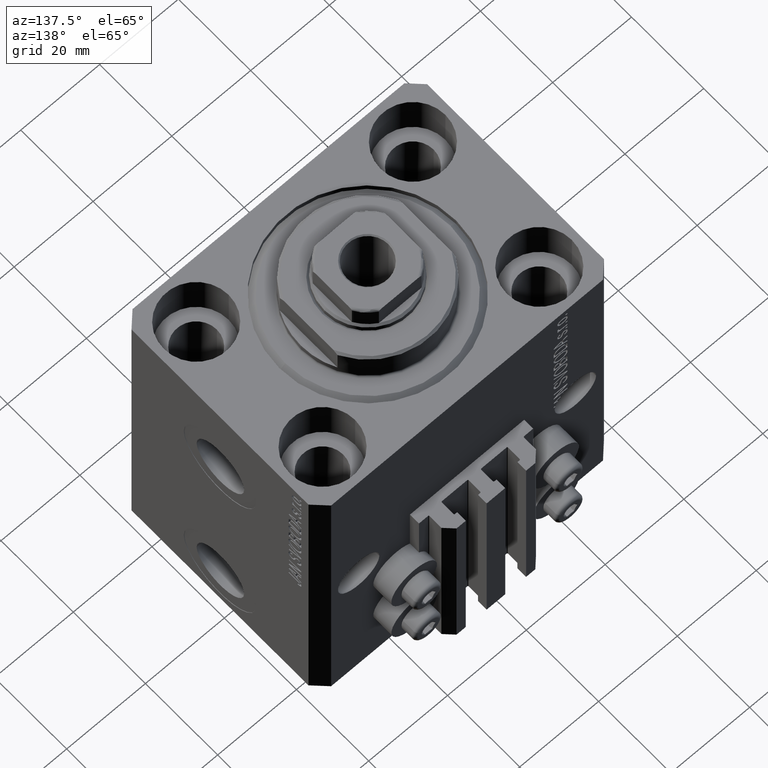
[diagram: clean part render]
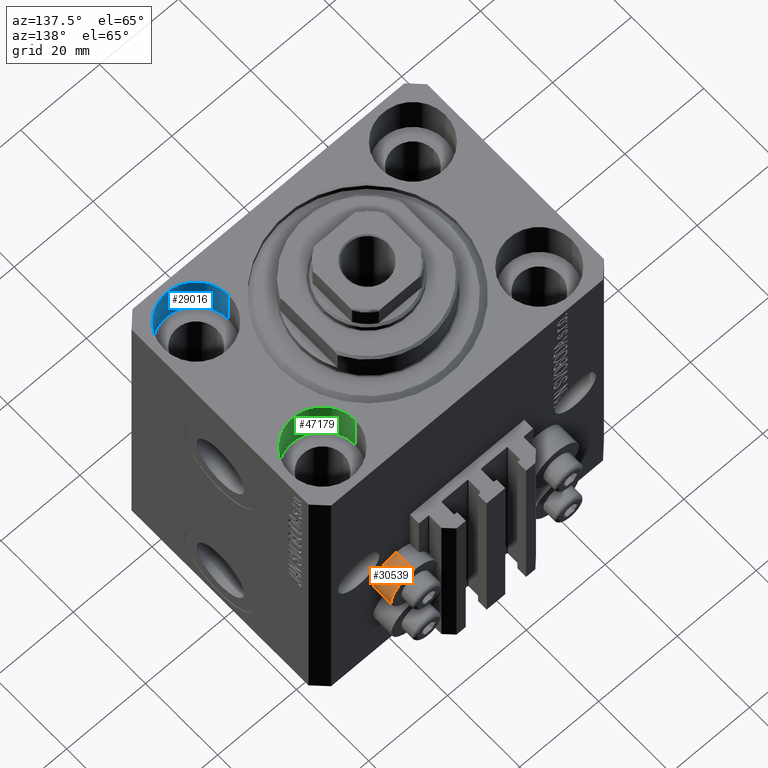
[diagram: same view with three faces highlighted in distinct colors, each labeled with its STEP entity id]
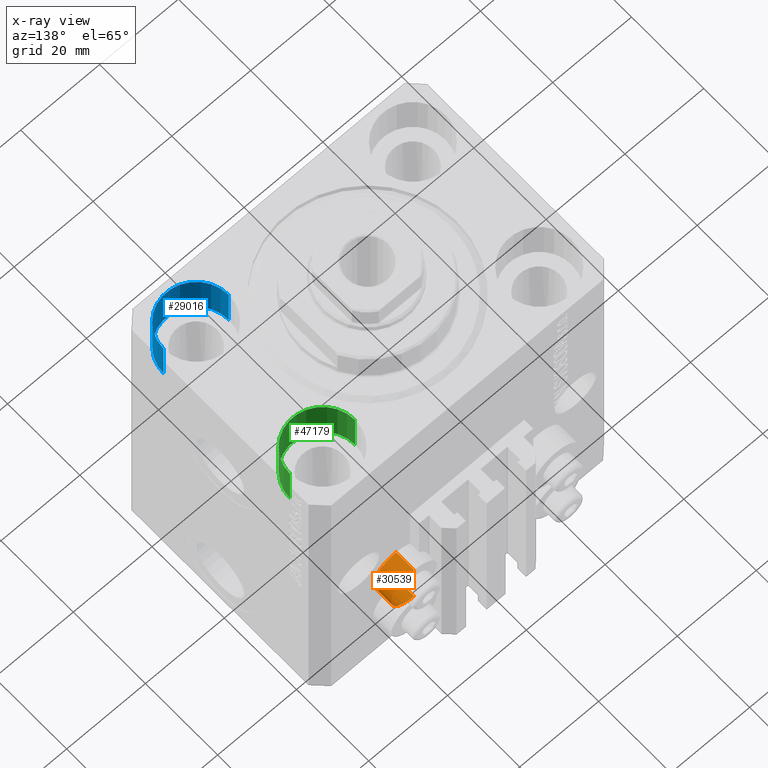
[diagram: x-ray of the same camera — body ghosted, the three highlighted faces saturated]
A machine part, auxiliary view with three faces highlighted in distinct colors.
The next image is the same camera in x-ray (body ghosted, the three faces saturated) — at least one of them is partly hidden behind the body in this view.
Their STEP definitions:

[orange] entity #30539 — the highlighted cylindrical surface (edge-blend (fillet) strip) has radius 5.8 mm, axis along (0, 1, 0).
#2327 = DIRECTION ( 'NONE',  ( 0.000000000000000000, 0.000000000000000000, 1.000000000000000000 ) ) ;
#3249 = EDGE_CURVE ( 'NONE', #19254, #18266, #23833, .T. ) ;
#8382 = CARTESIAN_POINT ( 'NONE',  ( 18.00000000000000355, 32.49999999996100541, -44.60000000000000142 ) ) ;
#8916 = AXIS2_PLACEMENT_3D ( 'NONE', #45143, #9453, #26960 ) ;
#9119 = CARTESIAN_POINT ( 'NONE',  ( 18.00000000000000355, 32.49999999996100541, -50.39999999999999858 ) ) ;
#9334 = LINE ( 'NONE', #16991, #40969 ) ;
#9453 = DIRECTION ( 'NONE',  ( -0.000000000000000000, -1.000000000000000000, -0.000000000000000000 ) ) ;
#9511 = EDGE_CURVE ( 'NONE', #16970, #23801, #11216, .T. ) ;
#9801 = DIRECTION ( 'NONE',  ( 0.000000000000000000, 1.000000000000000000, 0.000000000000000000 ) ) ;
#11216 = CIRCLE ( 'NONE', #8916, 5.799999999999999822 ) ;
#13117 = CARTESIAN_POINT ( 'NONE',  ( 18.00000000000000355, 32.49999999996100541, -50.39999999999999858 ) ) ;
#13618 = LINE ( 'NONE', #21038, #42166 ) ;
#14645 = EDGE_LOOP ( 'NONE', ( #21420, #29798, #29942, #37125 ) ) ;
#16970 = VERTEX_POINT ( 'NONE', #22555 ) ;
#16991 = CARTESIAN_POINT ( 'NONE',  ( 18.00000000000000355, 32.49999999996100541, -56.20000000000000284 ) ) ;
#18266 = VERTEX_POINT ( 'NONE', #8382 ) ;
#18352 = EDGE_CURVE ( 'NONE', #16970, #19254, #9334, .T. ) ;
#19254 = VERTEX_POINT ( 'NONE', #25257 ) ;
#21038 = CARTESIAN_POINT ( 'NONE',  ( 18.00000000000000355, 32.49999999996100541, -44.60000000000000142 ) ) ;
#21249 = FACE_OUTER_BOUND ( 'NONE', #14645, .T. ) ;
#21420 = ORIENTED_EDGE ( 'NONE', *, *, #9511, .F. ) ;
#22200 = DIRECTION ( 'NONE',  ( 0.000000000000000000, 1.000000000000000000, 0.000000000000000000 ) ) ;
#22555 = CARTESIAN_POINT ( 'NONE',  ( 18.00000000000000355, 27.50000000000000355, -56.20000000000000284 ) ) ;
#23275 = CARTESIAN_POINT ( 'NONE',  ( 18.00000000000000355, 27.50000000000000355, -44.60000000000000142 ) ) ;
#23747 = DIRECTION ( 'NONE',  ( -0.000000000000000000, -1.000000000000000000, -0.000000000000000000 ) ) ;
#23801 = VERTEX_POINT ( 'NONE', #23275 ) ;
#23833 = CIRCLE ( 'NONE', #34513, 5.799999999999999822 ) ;
#25257 = CARTESIAN_POINT ( 'NONE',  ( 18.00000000000000355, 32.49999999996100541, -56.20000000000000284 ) ) ;
#26960 = DIRECTION ( 'NONE',  ( 0.000000000000000000, 0.000000000000000000, 1.000000000000000000 ) ) ;
#27752 = DIRECTION ( 'NONE',  ( 0.000000000000000000, 1.000000000000000000, 0.000000000000000000 ) ) ;
#29798 = ORIENTED_EDGE ( 'NONE', *, *, #18352, .T. ) ;
#29942 = ORIENTED_EDGE ( 'NONE', *, *, #3249, .T. ) ;
#30539 = ADVANCED_FACE ( 'NONE', ( #21249 ), #45931, .T. ) ;
#34513 = AXIS2_PLACEMENT_3D ( 'NONE', #9119, #23747, #45771 ) ;
#37125 = ORIENTED_EDGE ( 'NONE', *, *, #41520, .F. ) ;
#40969 = VECTOR ( 'NONE', #9801, 1000.000000000000000 ) ;
#41520 = EDGE_CURVE ( 'NONE', #23801, #18266, #13618, .T. ) ;
#42166 = VECTOR ( 'NONE', #22200, 1000.000000000000000 ) ;
#45143 = CARTESIAN_POINT ( 'NONE',  ( 18.00000000000000355, 27.50000000000000355, -50.39999999999999858 ) ) ;
#45771 = DIRECTION ( 'NONE',  ( 0.000000000000000000, 0.000000000000000000, 1.000000000000000000 ) ) ;
#45863 = AXIS2_PLACEMENT_3D ( 'NONE', #13117, #27752, #2327 ) ;
#45931 = CYLINDRICAL_SURFACE ( 'NONE', #45863, 5.799999999999999822 ) ;

[blue] entity #29016 — the highlighted cylindrical surface (partial cylindrical patch) has radius 8.25 mm, axis along (0, 0, 1).
#846 = VERTEX_POINT ( 'NONE', #41932 ) ;
#1196 = DIRECTION ( 'NONE',  ( 1.000000000000000000, 0.000000000000000000, 0.000000000000000000 ) ) ;
#1980 = CARTESIAN_POINT ( 'NONE',  ( 27.50000000000000355, -17.50000000000000000, -11.00000000000000000 ) ) ;
#2849 = DIRECTION ( 'NONE',  ( -0.000000000000000000, -0.000000000000000000, 1.000000000000000000 ) ) ;
#3499 = ORIENTED_EDGE ( 'NONE', *, *, #7267, .F. ) ;
#5209 = DIRECTION ( 'NONE',  ( 0.000000000000000000, 0.000000000000000000, 1.000000000000000000 ) ) ;
#6116 = CIRCLE ( 'NONE', #22175, 8.250000000000000000 ) ;
#7267 = EDGE_CURVE ( 'NONE', #41686, #846, #7708, .T. ) ;
#7708 = LINE ( 'NONE', #25686, #27239 ) ;
#9088 = FACE_OUTER_BOUND ( 'NONE', #17487, .T. ) ;
#9644 = DIRECTION ( 'NONE',  ( 1.000000000000000000, 0.000000000000000000, 0.000000000000000000 ) ) ;
#9854 = VECTOR ( 'NONE', #2849, 1000.000000000000000 ) ;
#10962 = CARTESIAN_POINT ( 'NONE',  ( 35.75000000000000711, -17.50000000000000000, -11.00000000000000000 ) ) ;
#11363 = EDGE_CURVE ( 'NONE', #32346, #41686, #13213, .T. ) ;
#13213 = CIRCLE ( 'NONE', #22402, 8.250000000000000000 ) ;
#13642 = CARTESIAN_POINT ( 'NONE',  ( 19.25000000000000000, -17.50000000000000000, -11.00000000000000000 ) ) ;
#17487 = EDGE_LOOP ( 'NONE', ( #25529, #37148, #37799, #3499 ) ) ;
#18730 = DIRECTION ( 'NONE',  ( -0.000000000000000000, -0.000000000000000000, 1.000000000000000000 ) ) ;
#19647 = DIRECTION ( 'NONE',  ( -0.000000000000000000, -0.000000000000000000, 1.000000000000000000 ) ) ;
#22175 = AXIS2_PLACEMENT_3D ( 'NONE', #27279, #5209, #34680 ) ;
#22402 = AXIS2_PLACEMENT_3D ( 'NONE', #1980, #45811, #9644 ) ;
#23476 = CARTESIAN_POINT ( 'NONE',  ( 27.50000000000000355, -17.50000000000000000, -11.00000000000000000 ) ) ;
#23489 = VERTEX_POINT ( 'NONE', #41537 ) ;
#24202 = LINE ( 'NONE', #13642, #9854 ) ;
#25529 = ORIENTED_EDGE ( 'NONE', *, *, #11363, .F. ) ;
#25686 = CARTESIAN_POINT ( 'NONE',  ( 35.75000000000000711, -17.50000000000000000, -11.00000000000000000 ) ) ;
#27239 = VECTOR ( 'NONE', #18730, 1000.000000000000000 ) ;
#27279 = CARTESIAN_POINT ( 'NONE',  ( 27.50000000000000355, -17.50000000000000000, 0.000000000000000000 ) ) ;
#27559 = CYLINDRICAL_SURFACE ( 'NONE', #33579, 8.250000000000000000 ) ;
#28671 = EDGE_CURVE ( 'NONE', #32346, #23489, #24202, .T. ) ;
#29016 = ADVANCED_FACE ( 'NONE', ( #9088 ), #27559, .F. ) ;
#31227 = EDGE_CURVE ( 'NONE', #23489, #846, #6116, .T. ) ;
#32346 = VERTEX_POINT ( 'NONE', #45074 ) ;
#33579 = AXIS2_PLACEMENT_3D ( 'NONE', #23476, #19647, #1196 ) ;
#34680 = DIRECTION ( 'NONE',  ( 1.000000000000000000, 0.000000000000000000, 0.000000000000000000 ) ) ;
#37148 = ORIENTED_EDGE ( 'NONE', *, *, #28671, .T. ) ;
#37799 = ORIENTED_EDGE ( 'NONE', *, *, #31227, .T. ) ;
#41537 = CARTESIAN_POINT ( 'NONE',  ( 19.25000000000000000, -17.50000000000000000, 0.000000000000000000 ) ) ;
#41686 = VERTEX_POINT ( 'NONE', #10962 ) ;
#41932 = CARTESIAN_POINT ( 'NONE',  ( 35.75000000000000711, -17.50000000000000000, 0.000000000000000000 ) ) ;
#45074 = CARTESIAN_POINT ( 'NONE',  ( 19.25000000000000000, -17.50000000000000000, -11.00000000000000000 ) ) ;
#45811 = DIRECTION ( 'NONE',  ( 0.000000000000000000, 0.000000000000000000, 1.000000000000000000 ) ) ;

[green] entity #47179 — the highlighted cylindrical surface (partial cylindrical patch) has radius 8.25 mm, axis along (0, 0, 1).
#3334 = DIRECTION ( 'NONE',  ( -0.000000000000000000, -0.000000000000000000, 1.000000000000000000 ) ) ;
#3694 = CARTESIAN_POINT ( 'NONE',  ( 27.49999999999999645, 17.50000000000001066, 0.000000000000000000 ) ) ;
#7027 = FACE_OUTER_BOUND ( 'NONE', #25917, .T. ) ;
#7648 = VERTEX_POINT ( 'NONE', #22257 ) ;
#8394 = VERTEX_POINT ( 'NONE', #18211 ) ;
#12149 = EDGE_CURVE ( 'NONE', #19148, #8394, #39455, .T. ) ;
#12303 = CARTESIAN_POINT ( 'NONE',  ( 19.25000000000000000, 17.50000000000001066, -11.00000000000000000 ) ) ;
#13179 = ORIENTED_EDGE ( 'NONE', *, *, #23528, .F. ) ;
#13268 = AXIS2_PLACEMENT_3D ( 'NONE', #3694, #43956, #32939 ) ;
#13486 = VERTEX_POINT ( 'NONE', #12303 ) ;
#15010 = AXIS2_PLACEMENT_3D ( 'NONE', #24523, #32648, #46305 ) ;
#16948 = ORIENTED_EDGE ( 'NONE', *, *, #12149, .F. ) ;
#17658 = CARTESIAN_POINT ( 'NONE',  ( 35.74999999999999289, 17.50000000000001066, -11.00000000000000000 ) ) ;
#18211 = CARTESIAN_POINT ( 'NONE',  ( 35.74999999999999289, 17.50000000000001066, 0.000000000000000000 ) ) ;
#19148 = VERTEX_POINT ( 'NONE', #31735 ) ;
#22257 = CARTESIAN_POINT ( 'NONE',  ( 19.25000000000000000, 17.50000000000001066, 0.000000000000000000 ) ) ;
#23177 = AXIS2_PLACEMENT_3D ( 'NONE', #24768, #39362, #24300 ) ;
#23528 = EDGE_CURVE ( 'NONE', #13486, #19148, #25726, .T. ) ;
#23805 = VECTOR ( 'NONE', #3334, 1000.000000000000000 ) ;
#24300 = DIRECTION ( 'NONE',  ( 1.000000000000000000, 0.000000000000000000, 0.000000000000000000 ) ) ;
#24523 = CARTESIAN_POINT ( 'NONE',  ( 27.49999999999999645, 17.50000000000001066, -11.00000000000000000 ) ) ;
#24715 = VECTOR ( 'NONE', #46169, 1000.000000000000000 ) ;
#24768 = CARTESIAN_POINT ( 'NONE',  ( 27.49999999999999645, 17.50000000000001066, -11.00000000000000000 ) ) ;
#25499 = ORIENTED_EDGE ( 'NONE', *, *, #38096, .T. ) ;
#25726 = CIRCLE ( 'NONE', #15010, 8.249999999999992895 ) ;
#25917 = EDGE_LOOP ( 'NONE', ( #13179, #25499, #42862, #16948 ) ) ;
#31735 = CARTESIAN_POINT ( 'NONE',  ( 35.74999999999999289, 17.50000000000001066, -11.00000000000000000 ) ) ;
#32575 = CARTESIAN_POINT ( 'NONE',  ( 19.25000000000000000, 17.50000000000001066, -11.00000000000000000 ) ) ;
#32648 = DIRECTION ( 'NONE',  ( 0.000000000000000000, 0.000000000000000000, 1.000000000000000000 ) ) ;
#32810 = LINE ( 'NONE', #32575, #23805 ) ;
#32939 = DIRECTION ( 'NONE',  ( 1.000000000000000000, 0.000000000000000000, 0.000000000000000000 ) ) ;
#38096 = EDGE_CURVE ( 'NONE', #13486, #7648, #32810, .T. ) ;
#39362 = DIRECTION ( 'NONE',  ( -0.000000000000000000, -0.000000000000000000, 1.000000000000000000 ) ) ;
#39455 = LINE ( 'NONE', #17658, #24715 ) ;
#41547 = CIRCLE ( 'NONE', #13268, 8.249999999999992895 ) ;
#42862 = ORIENTED_EDGE ( 'NONE', *, *, #47002, .T. ) ;
#42970 = CYLINDRICAL_SURFACE ( 'NONE', #23177, 8.249999999999992895 ) ;
#43956 = DIRECTION ( 'NONE',  ( 0.000000000000000000, 0.000000000000000000, 1.000000000000000000 ) ) ;
#46169 = DIRECTION ( 'NONE',  ( -0.000000000000000000, -0.000000000000000000, 1.000000000000000000 ) ) ;
#46305 = DIRECTION ( 'NONE',  ( 1.000000000000000000, 0.000000000000000000, 0.000000000000000000 ) ) ;
#47002 = EDGE_CURVE ( 'NONE', #7648, #8394, #41547, .T. ) ;
#47179 = ADVANCED_FACE ( 'NONE', ( #7027 ), #42970, .F. ) ;